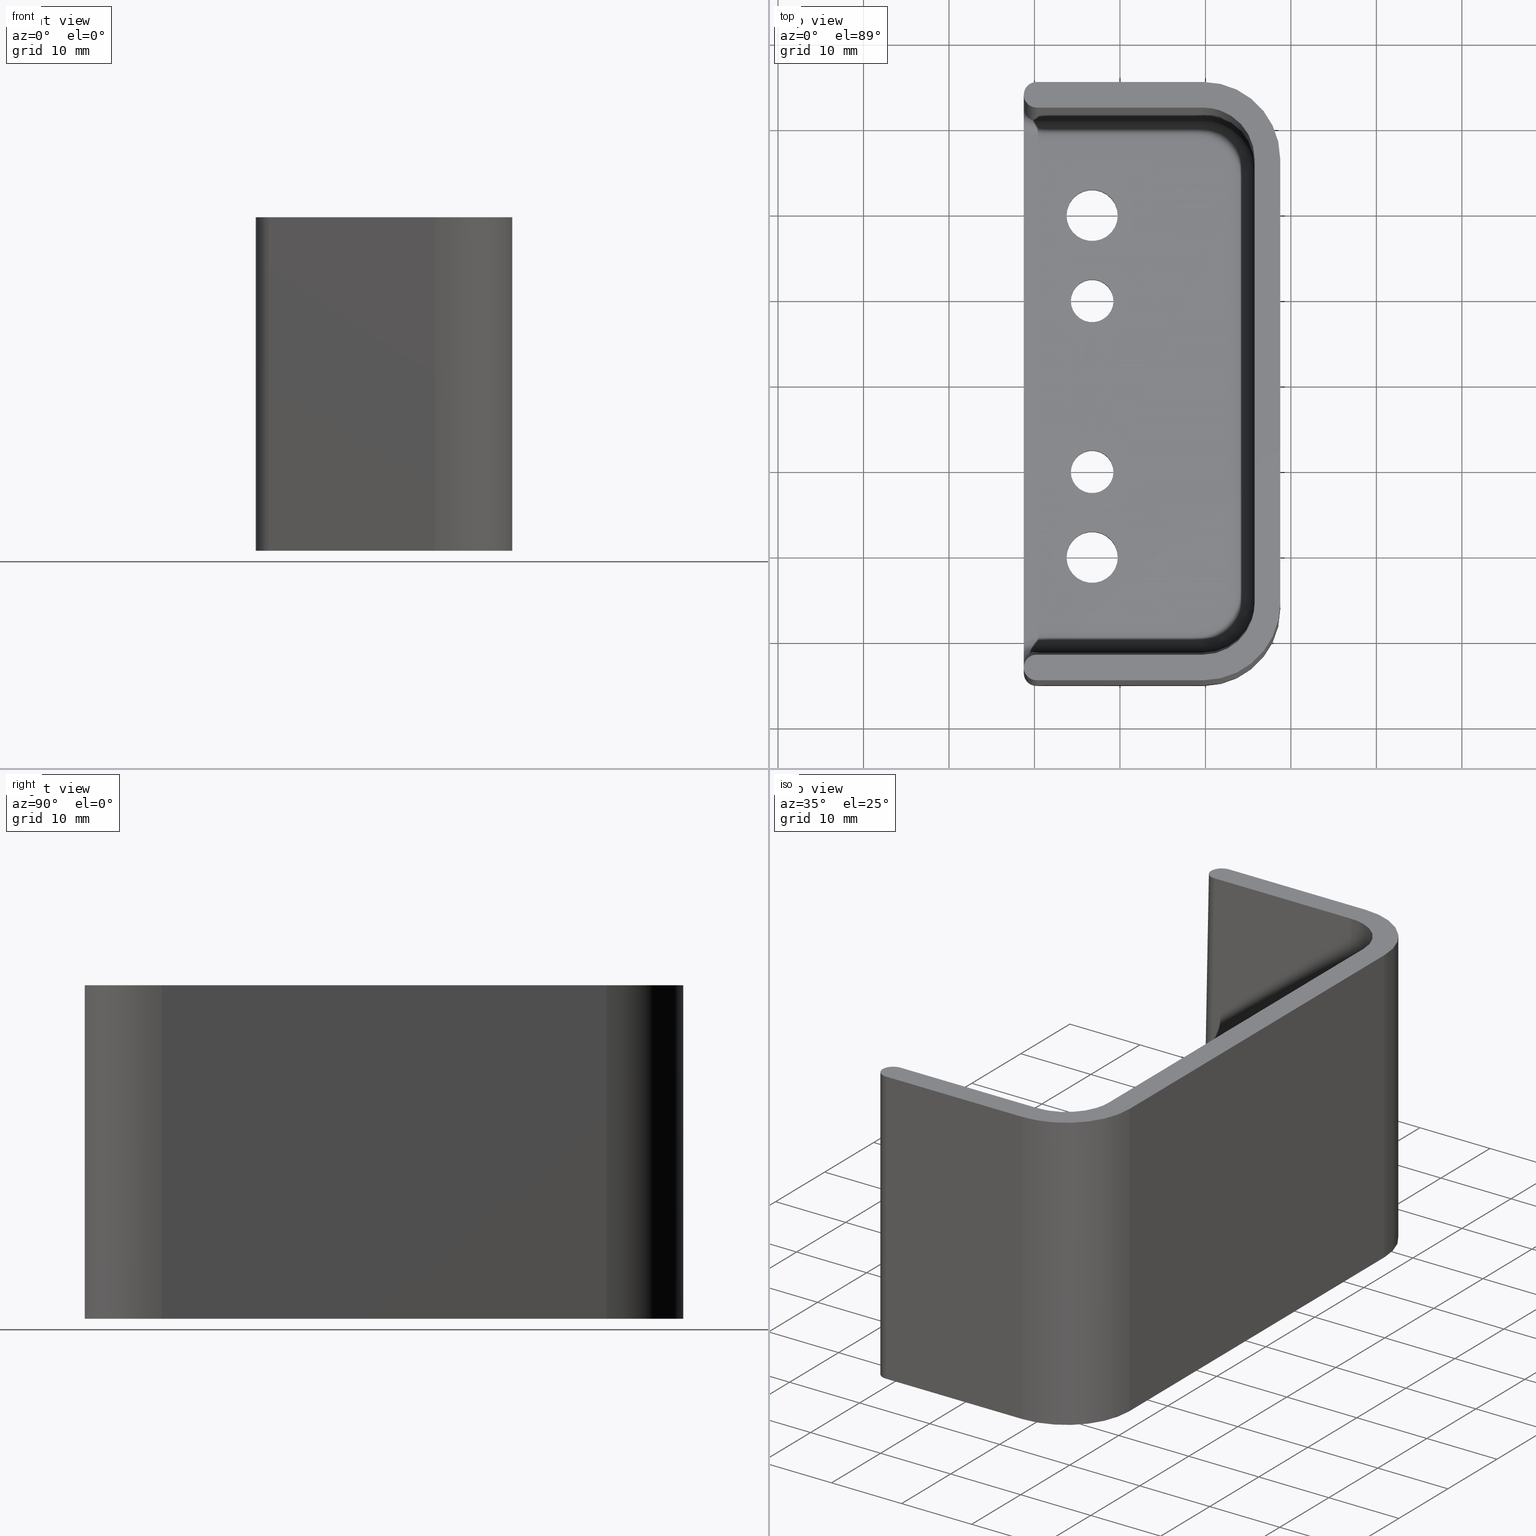
[diagram: canonical four-view strip — front | top / right | iso, engineering-drawing reading convention]
A machine part, canonical four-view strip (front | top / right | iso — engineering-drawing reading convention). The complete STEP part file that produces these views, byte-faithful:
ISO-10303-21;
HEADER;
/* Generated by software containing ST-Developer
 * from STEP Tools, Inc. (www.steptools.com) 
 */

FILE_DESCRIPTION(
/* description */ ('CUFFIA.PROT.STAFFA MICRO NYLON NERO'),
/* implementation_level */ '2;1');

FILE_NAME(
/* name */ 
'Q:\\Catalogo\\3_Profili e accessori MACAP\\Per Download Web e catalog
o artaceo\\ACCESSORI\\PAGINA 67\\CTPYY0000010-XF39101N.stp',
/* time_stamp */ '2018-02-28T15:41:36+01:00',
/* author */ ('fzagni'),
/* organization */ (''),
/* preprocessor_version */ 'ST-DEVELOPER v16.1',
/* originating_system */ 'Autodesk Inventor 2016',
/* authorisation */ '');

FILE_SCHEMA (('AUTOMOTIVE_DESIGN { 1 0 10303 214 3 1 1 }'));
ENDSEC;

DATA;
#10=MECHANICAL_DESIGN_GEOMETRIC_PRESENTATION_REPRESENTATION('',(#13),#1006);
#11=SHAPE_REPRESENTATION_RELATIONSHIP('SRR','None',#1015,#12);
#12=ADVANCED_BREP_SHAPE_REPRESENTATION('',(#14),#1005);
#13=STYLED_ITEM('',(#1024),#14);
#14=MANIFOLD_SOLID_BREP('Solido2',#510);
#15=PLANE('',#545);
#16=PLANE('',#548);
#17=PLANE('',#551);
#18=PLANE('',#552);
#19=PLANE('',#557);
#20=PLANE('',#558);
#21=PLANE('',#561);
#22=PLANE('',#566);
#23=PLANE('',#568);
#24=PLANE('',#570);
#25=B_SPLINE_CURVE_WITH_KNOTS('',3,(#821,#822,#823,#824,#825,#826,#827,
#828,#829,#830),.UNSPECIFIED.,.F.,.F.,(4,2,2,2,4),(0.,0.0716164799611134,
0.154741747433092,0.270847550066659,0.2715584243751),.UNSPECIFIED.);
#26=B_SPLINE_CURVE_WITH_KNOTS('',3,(#913,#914,#915,#916,#917,#918,#919,
#920,#921,#922),.UNSPECIFIED.,.F.,.F.,(4,2,2,2,4),(-0.000773015021683237,
0.,0.126252229330284,0.216641764230667,0.294516765560075),.UNSPECIFIED.);
#27=LINE('',#787,#60);
#28=LINE('',#788,#61);
#29=LINE('',#837,#62);
#30=LINE('',#838,#63);
#31=LINE('',#925,#64);
#32=LINE('',#926,#65);
#33=LINE('',#928,#66);
#34=LINE('',#929,#67);
#35=LINE('',#934,#68);
#36=LINE('',#935,#69);
#37=LINE('',#937,#70);
#38=LINE('',#940,#71);
#39=LINE('',#943,#72);
#40=LINE('',#945,#73);
#41=LINE('',#948,#74);
#42=LINE('',#951,#75);
#43=LINE('',#953,#76);
#44=LINE('',#958,#77);
#45=LINE('',#962,#78);
#46=LINE('',#966,#79);
#47=LINE('',#968,#80);
#48=LINE('',#972,#81);
#49=LINE('',#974,#82);
#50=LINE('',#975,#83);
#51=LINE('',#978,#84);
#52=LINE('',#982,#85);
#53=LINE('',#986,#86);
#54=LINE('',#990,#87);
#55=LINE('',#993,#88);
#56=LINE('',#995,#89);
#57=LINE('',#997,#90);
#58=LINE('',#999,#91);
#59=LINE('',#1001,#92);
#60=VECTOR('',#609,19.5);
#61=VECTOR('',#610,19.5);
#62=VECTOR('',#619,33.0145310117381);
#63=VECTOR('',#620,33.0590499724358);
#64=VECTOR('',#637,19.5);
#65=VECTOR('',#638,19.5);
#66=VECTOR('',#641,50.0358817250325);
#67=VECTOR('',#642,50.0358817250325);
#68=VECTOR('',#647,33.0590499724358);
#69=VECTOR('',#648,33.0145310117381);
#70=VECTOR('',#651,59.8440462666962);
#71=VECTOR('',#654,33.0590499724358);
#72=VECTOR('',#657,33.0145114171681);
#73=VECTOR('',#660,19.5);
#74=VECTOR('',#663,33.014511417168);
#75=VECTOR('',#666,33.0590499724358);
#76=VECTOR('',#669,19.5);
#77=VECTOR('',#674,19.4999999999996);
#78=VECTOR('',#677,52.0000000000002);
#79=VECTOR('',#680,19.4999999999996);
#80=VECTOR('',#683,51.9947159957318);
#81=VECTOR('',#688,39.);
#82=VECTOR('',#689,67.0000000000002);
#83=VECTOR('',#690,39.);
#84=VECTOR('',#693,39.);
#85=VECTOR('',#698,19.4999999999996);
#86=VECTOR('',#701,52.0000000000002);
#87=VECTOR('',#704,19.4999999999996);
#88=VECTOR('',#709,39.);
#89=VECTOR('',#712,39.);
#90=VECTOR('',#715,39.);
#91=VECTOR('',#718,39.);
#92=VECTOR('',#721,39.);
#93=ELLIPSE('',#524,4.50198150160065,4.5);
#94=ELLIPSE('',#526,6.00148626931317,6.);
#95=ELLIPSE('',#530,1.50264026015757,1.5);
#96=ELLIPSE('',#531,3.0013210010671,3.);
#97=ELLIPSE('',#533,6.0026420021342,6.);
#98=ELLIPSE('',#534,6.00148626931317,6.);
#99=ELLIPSE('',#536,4.50198150160065,4.5);
#100=ELLIPSE('',#539,1.50264026015758,1.5);
#101=ELLIPSE('',#540,3.0013210010671,3.);
#102=ELLIPSE('',#544,6.0026420021342,6.);
#103=ELLIPSE('',#547,1.50066050053355,1.5);
#104=ELLIPSE('',#550,1.50066050053355,1.5);
#105=B_SPLINE_SURFACE_WITH_KNOTS('',3,3,((#745,#746,#747,#748,#749,#750),
(#751,#752,#753,#754,#755,#756),(#757,#758,#759,#760,#761,#762),(#763,#764,
#765,#766,#767,#768),(#769,#770,#771,#772,#773,#774)),.UNSPECIFIED.,.F.,
 .F.,.F.,(4,1,4),(4,1,1,4),(0.,0.571428571428571,1.),(-8.94271686436828E-16,
0.673198425769241,1.12199737628207,1.5707963267949),.UNSPECIFIED.);
#106=B_SPLINE_SURFACE_WITH_KNOTS('',3,3,((#789,#790,#791,#792,#793,#794),
(#795,#796,#797,#798,#799,#800),(#801,#802,#803,#804,#805,#806),(#807,#808,
#809,#810,#811,#812),(#813,#814,#815,#816,#817,#818)),.UNSPECIFIED.,.F.,
 .F.,.F.,(4,1,4),(4,1,1,4),(0.,0.571428571428571,1.),(1.74971148680925E-13,
0.673198425769417,1.12199737628225,1.57079632679507),.UNSPECIFIED.);
#107=B_SPLINE_SURFACE_WITH_KNOTS('',3,3,((#839,#840,#841,#842,#843,#844),
(#845,#846,#847,#848,#849,#850),(#851,#852,#853,#854,#855,#856),(#857,#858,
#859,#860,#861,#862),(#863,#864,#865,#866,#867,#868)),.UNSPECIFIED.,.F.,
 .F.,.F.,(4,1,4),(4,1,1,4),(0.,0.571428571428571,1.),(-1.5707963267949,
-0.897597901025655,-0.448798950512827,4.31753398465338E-16),
 .UNSPECIFIED.);
#108=B_SPLINE_SURFACE_WITH_KNOTS('',3,3,((#877,#878,#879,#880,#881,#882),
(#883,#884,#885,#886,#887,#888),(#889,#890,#891,#892,#893,#894),(#895,#896,
#897,#898,#899,#900),(#901,#902,#903,#904,#905,#906)),.UNSPECIFIED.,.F.,
 .F.,.F.,(4,1,4),(4,1,1,4),(0.,0.571428571428571,1.),(-1.5707963267949,
-1.12199737628207,-0.673198425769242,4.9960036108132E-16),.UNSPECIFIED.);
#109=FACE_BOUND('',#151,.T.);
#110=FACE_BOUND('',#153,.T.);
#111=FACE_BOUND('',#155,.T.);
#112=FACE_BOUND('',#157,.T.);
#113=FACE_BOUND('',#168,.T.);
#114=FACE_BOUND('',#169,.T.);
#115=FACE_BOUND('',#170,.T.);
#116=FACE_BOUND('',#171,.T.);
#117=FACE_BOUND('',#181,.T.);
#118=FACE_BOUND('',#182,.T.);
#119=FACE_BOUND('',#183,.T.);
#120=FACE_BOUND('',#184,.T.);
#121=FACE_OUTER_BOUND('',#150,.T.);
#122=FACE_OUTER_BOUND('',#152,.T.);
#123=FACE_OUTER_BOUND('',#154,.T.);
#124=FACE_OUTER_BOUND('',#156,.T.);
#125=FACE_OUTER_BOUND('',#158,.T.);
#126=FACE_OUTER_BOUND('',#159,.T.);
#127=FACE_OUTER_BOUND('',#160,.T.);
#128=FACE_OUTER_BOUND('',#161,.T.);
#129=FACE_OUTER_BOUND('',#162,.T.);
#130=FACE_OUTER_BOUND('',#163,.T.);
#131=FACE_OUTER_BOUND('',#164,.T.);
#132=FACE_OUTER_BOUND('',#165,.T.);
#133=FACE_OUTER_BOUND('',#166,.T.);
#134=FACE_OUTER_BOUND('',#167,.T.);
#135=FACE_OUTER_BOUND('',#172,.T.);
#136=FACE_OUTER_BOUND('',#173,.T.);
#137=FACE_OUTER_BOUND('',#174,.T.);
#138=FACE_OUTER_BOUND('',#175,.T.);
#139=FACE_OUTER_BOUND('',#176,.T.);
#140=FACE_OUTER_BOUND('',#177,.T.);
#141=FACE_OUTER_BOUND('',#178,.T.);
#142=FACE_OUTER_BOUND('',#179,.T.);
#143=FACE_OUTER_BOUND('',#180,.T.);
#144=FACE_OUTER_BOUND('',#185,.T.);
#145=FACE_OUTER_BOUND('',#186,.T.);
#146=FACE_OUTER_BOUND('',#187,.T.);
#147=FACE_OUTER_BOUND('',#188,.T.);
#148=FACE_OUTER_BOUND('',#189,.T.);
#149=FACE_OUTER_BOUND('',#190,.T.);
#150=EDGE_LOOP('',(#328));
#151=EDGE_LOOP('',(#329));
#152=EDGE_LOOP('',(#330));
#153=EDGE_LOOP('',(#331));
#154=EDGE_LOOP('',(#332));
#155=EDGE_LOOP('',(#333));
#156=EDGE_LOOP('',(#334));
#157=EDGE_LOOP('',(#335));
#158=EDGE_LOOP('',(#336,#337,#338,#339));
#159=EDGE_LOOP('',(#340,#341,#342,#343));
#160=EDGE_LOOP('',(#344,#345,#346,#347));
#161=EDGE_LOOP('',(#348,#349,#350,#351));
#162=EDGE_LOOP('',(#352,#353,#354,#355));
#163=EDGE_LOOP('',(#356,#357,#358,#359));
#164=EDGE_LOOP('',(#360,#361,#362,#363));
#165=EDGE_LOOP('',(#364,#365,#366,#367));
#166=EDGE_LOOP('',(#368,#369,#370,#371));
#167=EDGE_LOOP('',(#372,#373,#374,#375,#376,#377,#378,#379));
#168=EDGE_LOOP('',(#380));
#169=EDGE_LOOP('',(#381));
#170=EDGE_LOOP('',(#382));
#171=EDGE_LOOP('',(#383));
#172=EDGE_LOOP('',(#384,#385,#386,#387));
#173=EDGE_LOOP('',(#388,#389,#390,#391));
#174=EDGE_LOOP('',(#392,#393,#394,#395));
#175=EDGE_LOOP('',(#396,#397,#398,#399));
#176=EDGE_LOOP('',(#400,#401,#402,#403,#404,#405,#406,#407,#408,#409,#410,
#411,#412,#413));
#177=EDGE_LOOP('',(#414,#415,#416,#417));
#178=EDGE_LOOP('',(#418,#419,#420,#421,#422,#423,#424,#425));
#179=EDGE_LOOP('',(#426,#427,#428,#429));
#180=EDGE_LOOP('',(#430,#431,#432,#433,#434,#435,#436,#437));
#181=EDGE_LOOP('',(#438));
#182=EDGE_LOOP('',(#439));
#183=EDGE_LOOP('',(#440));
#184=EDGE_LOOP('',(#441));
#185=EDGE_LOOP('',(#442,#443,#444,#445));
#186=EDGE_LOOP('',(#446,#447,#448,#449));
#187=EDGE_LOOP('',(#450,#451,#452,#453));
#188=EDGE_LOOP('',(#454,#455,#456,#457));
#189=EDGE_LOOP('',(#458,#459,#460,#461));
#190=EDGE_LOOP('',(#462,#463,#464,#465));
#191=CIRCLE('',#513,2.5);
#192=CIRCLE('',#514,2.5);
#193=CIRCLE('',#516,2.5);
#194=CIRCLE('',#517,2.5);
#195=CIRCLE('',#519,3.);
#196=CIRCLE('',#520,3.);
#197=CIRCLE('',#522,3.);
#198=CIRCLE('',#523,3.);
#199=CIRCLE('',#525,1.5);
#200=CIRCLE('',#527,1.5);
#201=CIRCLE('',#529,1.5);
#202=CIRCLE('',#535,1.5);
#203=CIRCLE('',#537,1.5);
#204=CIRCLE('',#538,1.5);
#205=CIRCLE('',#553,1.5);
#206=CIRCLE('',#554,9.);
#207=CIRCLE('',#555,9.);
#208=CIRCLE('',#556,1.5);
#209=CIRCLE('',#560,1.5);
#210=CIRCLE('',#562,9.);
#211=CIRCLE('',#563,9.);
#212=CIRCLE('',#564,1.5);
#213=VERTEX_POINT('',#726);
#214=VERTEX_POINT('',#728);
#215=VERTEX_POINT('',#731);
#216=VERTEX_POINT('',#733);
#217=VERTEX_POINT('',#736);
#218=VERTEX_POINT('',#738);
#219=VERTEX_POINT('',#741);
#220=VERTEX_POINT('',#743);
#221=VERTEX_POINT('',#775);
#222=VERTEX_POINT('',#776);
#223=VERTEX_POINT('',#778);
#224=VERTEX_POINT('',#780);
#225=VERTEX_POINT('',#784);
#226=VERTEX_POINT('',#785);
#227=VERTEX_POINT('',#819);
#228=VERTEX_POINT('',#820);
#229=VERTEX_POINT('',#834);
#230=VERTEX_POINT('',#835);
#231=VERTEX_POINT('',#869);
#232=VERTEX_POINT('',#870);
#233=VERTEX_POINT('',#872);
#234=VERTEX_POINT('',#874);
#235=VERTEX_POINT('',#907);
#236=VERTEX_POINT('',#908);
#237=VERTEX_POINT('',#910);
#238=VERTEX_POINT('',#912);
#239=VERTEX_POINT('',#931);
#240=VERTEX_POINT('',#932);
#241=VERTEX_POINT('',#939);
#242=VERTEX_POINT('',#941);
#243=VERTEX_POINT('',#947);
#244=VERTEX_POINT('',#949);
#245=VERTEX_POINT('',#955);
#246=VERTEX_POINT('',#957);
#247=VERTEX_POINT('',#959);
#248=VERTEX_POINT('',#961);
#249=VERTEX_POINT('',#963);
#250=VERTEX_POINT('',#965);
#251=VERTEX_POINT('',#971);
#252=VERTEX_POINT('',#973);
#253=VERTEX_POINT('',#977);
#254=VERTEX_POINT('',#981);
#255=VERTEX_POINT('',#983);
#256=VERTEX_POINT('',#985);
#257=VERTEX_POINT('',#987);
#258=VERTEX_POINT('',#989);
#259=EDGE_CURVE('',#213,#213,#191,.T.);
#260=EDGE_CURVE('',#214,#214,#192,.T.);
#261=EDGE_CURVE('',#215,#215,#193,.T.);
#262=EDGE_CURVE('',#216,#216,#194,.T.);
#263=EDGE_CURVE('',#217,#217,#195,.T.);
#264=EDGE_CURVE('',#218,#218,#196,.T.);
#265=EDGE_CURVE('',#219,#219,#197,.T.);
#266=EDGE_CURVE('',#220,#220,#198,.T.);
#267=EDGE_CURVE('',#221,#222,#93,.T.);
#268=EDGE_CURVE('',#223,#222,#199,.T.);
#269=EDGE_CURVE('',#224,#223,#94,.F.);
#270=EDGE_CURVE('',#221,#224,#200,.T.);
#271=EDGE_CURVE('',#225,#226,#201,.T.);
#272=EDGE_CURVE('',#226,#223,#27,.T.);
#273=EDGE_CURVE('',#222,#225,#28,.T.);
#274=EDGE_CURVE('',#227,#228,#25,.T.);
#275=EDGE_CURVE('',#228,#226,#95,.T.);
#276=EDGE_CURVE('',#225,#227,#96,.T.);
#277=EDGE_CURVE('',#229,#230,#97,.T.);
#278=EDGE_CURVE('',#230,#224,#29,.T.);
#279=EDGE_CURVE('',#223,#229,#30,.T.);
#280=EDGE_CURVE('',#231,#232,#98,.F.);
#281=EDGE_CURVE('',#233,#231,#202,.T.);
#282=EDGE_CURVE('',#233,#234,#99,.T.);
#283=EDGE_CURVE('',#232,#234,#203,.T.);
#284=EDGE_CURVE('',#235,#236,#204,.T.);
#285=EDGE_CURVE('',#236,#237,#100,.T.);
#286=EDGE_CURVE('',#237,#238,#26,.T.);
#287=EDGE_CURVE('',#238,#235,#101,.T.);
#288=EDGE_CURVE('',#231,#236,#31,.T.);
#289=EDGE_CURVE('',#235,#233,#32,.T.);
#290=EDGE_CURVE('',#234,#221,#33,.T.);
#291=EDGE_CURVE('',#224,#232,#34,.T.);
#292=EDGE_CURVE('',#239,#240,#102,.T.);
#293=EDGE_CURVE('',#240,#231,#35,.T.);
#294=EDGE_CURVE('',#232,#239,#36,.T.);
#295=EDGE_CURVE('',#238,#227,#37,.T.);
#296=EDGE_CURVE('',#236,#241,#38,.T.);
#297=EDGE_CURVE('',#241,#242,#103,.T.);
#298=EDGE_CURVE('',#242,#237,#39,.T.);
#299=EDGE_CURVE('',#241,#240,#40,.T.);
#300=EDGE_CURVE('',#228,#243,#41,.T.);
#301=EDGE_CURVE('',#243,#244,#104,.T.);
#302=EDGE_CURVE('',#244,#226,#42,.T.);
#303=EDGE_CURVE('',#229,#244,#43,.T.);
#304=EDGE_CURVE('',#243,#245,#205,.T.);
#305=EDGE_CURVE('',#245,#246,#44,.T.);
#306=EDGE_CURVE('',#246,#247,#206,.T.);
#307=EDGE_CURVE('',#247,#248,#45,.T.);
#308=EDGE_CURVE('',#248,#249,#207,.T.);
#309=EDGE_CURVE('',#249,#250,#46,.T.);
#310=EDGE_CURVE('',#250,#242,#208,.T.);
#311=EDGE_CURVE('',#239,#230,#47,.T.);
#312=EDGE_CURVE('',#251,#242,#48,.T.);
#313=EDGE_CURVE('',#252,#251,#49,.T.);
#314=EDGE_CURVE('',#252,#243,#50,.T.);
#315=EDGE_CURVE('',#253,#250,#51,.T.);
#316=EDGE_CURVE('',#251,#253,#209,.T.);
#317=EDGE_CURVE('',#253,#254,#52,.T.);
#318=EDGE_CURVE('',#254,#255,#210,.T.);
#319=EDGE_CURVE('',#255,#256,#53,.T.);
#320=EDGE_CURVE('',#256,#257,#211,.T.);
#321=EDGE_CURVE('',#257,#258,#54,.T.);
#322=EDGE_CURVE('',#258,#252,#212,.T.);
#323=EDGE_CURVE('',#245,#258,#55,.T.);
#324=EDGE_CURVE('',#254,#249,#56,.T.);
#325=EDGE_CURVE('',#255,#248,#57,.T.);
#326=EDGE_CURVE('',#256,#247,#58,.T.);
#327=EDGE_CURVE('',#257,#246,#59,.T.);
#328=ORIENTED_EDGE('',*,*,#259,.F.);
#329=ORIENTED_EDGE('',*,*,#260,.F.);
#330=ORIENTED_EDGE('',*,*,#261,.F.);
#331=ORIENTED_EDGE('',*,*,#262,.F.);
#332=ORIENTED_EDGE('',*,*,#263,.F.);
#333=ORIENTED_EDGE('',*,*,#264,.F.);
#334=ORIENTED_EDGE('',*,*,#265,.F.);
#335=ORIENTED_EDGE('',*,*,#266,.F.);
#336=ORIENTED_EDGE('',*,*,#267,.T.);
#337=ORIENTED_EDGE('',*,*,#268,.F.);
#338=ORIENTED_EDGE('',*,*,#269,.F.);
#339=ORIENTED_EDGE('',*,*,#270,.F.);
#340=ORIENTED_EDGE('',*,*,#271,.T.);
#341=ORIENTED_EDGE('',*,*,#272,.T.);
#342=ORIENTED_EDGE('',*,*,#268,.T.);
#343=ORIENTED_EDGE('',*,*,#273,.T.);
#344=ORIENTED_EDGE('',*,*,#274,.T.);
#345=ORIENTED_EDGE('',*,*,#275,.T.);
#346=ORIENTED_EDGE('',*,*,#271,.F.);
#347=ORIENTED_EDGE('',*,*,#276,.T.);
#348=ORIENTED_EDGE('',*,*,#277,.T.);
#349=ORIENTED_EDGE('',*,*,#278,.T.);
#350=ORIENTED_EDGE('',*,*,#269,.T.);
#351=ORIENTED_EDGE('',*,*,#279,.T.);
#352=ORIENTED_EDGE('',*,*,#280,.F.);
#353=ORIENTED_EDGE('',*,*,#281,.F.);
#354=ORIENTED_EDGE('',*,*,#282,.T.);
#355=ORIENTED_EDGE('',*,*,#283,.F.);
#356=ORIENTED_EDGE('',*,*,#284,.T.);
#357=ORIENTED_EDGE('',*,*,#285,.T.);
#358=ORIENTED_EDGE('',*,*,#286,.T.);
#359=ORIENTED_EDGE('',*,*,#287,.T.);
#360=ORIENTED_EDGE('',*,*,#281,.T.);
#361=ORIENTED_EDGE('',*,*,#288,.T.);
#362=ORIENTED_EDGE('',*,*,#284,.F.);
#363=ORIENTED_EDGE('',*,*,#289,.T.);
#364=ORIENTED_EDGE('',*,*,#283,.T.);
#365=ORIENTED_EDGE('',*,*,#290,.T.);
#366=ORIENTED_EDGE('',*,*,#270,.T.);
#367=ORIENTED_EDGE('',*,*,#291,.T.);
#368=ORIENTED_EDGE('',*,*,#292,.T.);
#369=ORIENTED_EDGE('',*,*,#293,.T.);
#370=ORIENTED_EDGE('',*,*,#280,.T.);
#371=ORIENTED_EDGE('',*,*,#294,.T.);
#372=ORIENTED_EDGE('',*,*,#276,.F.);
#373=ORIENTED_EDGE('',*,*,#273,.F.);
#374=ORIENTED_EDGE('',*,*,#267,.F.);
#375=ORIENTED_EDGE('',*,*,#290,.F.);
#376=ORIENTED_EDGE('',*,*,#282,.F.);
#377=ORIENTED_EDGE('',*,*,#289,.F.);
#378=ORIENTED_EDGE('',*,*,#287,.F.);
#379=ORIENTED_EDGE('',*,*,#295,.T.);
#380=ORIENTED_EDGE('',*,*,#260,.T.);
#381=ORIENTED_EDGE('',*,*,#262,.T.);
#382=ORIENTED_EDGE('',*,*,#264,.T.);
#383=ORIENTED_EDGE('',*,*,#266,.T.);
#384=ORIENTED_EDGE('',*,*,#285,.F.);
#385=ORIENTED_EDGE('',*,*,#296,.T.);
#386=ORIENTED_EDGE('',*,*,#297,.T.);
#387=ORIENTED_EDGE('',*,*,#298,.T.);
#388=ORIENTED_EDGE('',*,*,#288,.F.);
#389=ORIENTED_EDGE('',*,*,#293,.F.);
#390=ORIENTED_EDGE('',*,*,#299,.F.);
#391=ORIENTED_EDGE('',*,*,#296,.F.);
#392=ORIENTED_EDGE('',*,*,#275,.F.);
#393=ORIENTED_EDGE('',*,*,#300,.T.);
#394=ORIENTED_EDGE('',*,*,#301,.T.);
#395=ORIENTED_EDGE('',*,*,#302,.T.);
#396=ORIENTED_EDGE('',*,*,#272,.F.);
#397=ORIENTED_EDGE('',*,*,#302,.F.);
#398=ORIENTED_EDGE('',*,*,#303,.F.);
#399=ORIENTED_EDGE('',*,*,#279,.F.);
#400=ORIENTED_EDGE('',*,*,#301,.F.);
#401=ORIENTED_EDGE('',*,*,#304,.T.);
#402=ORIENTED_EDGE('',*,*,#305,.T.);
#403=ORIENTED_EDGE('',*,*,#306,.T.);
#404=ORIENTED_EDGE('',*,*,#307,.T.);
#405=ORIENTED_EDGE('',*,*,#308,.T.);
#406=ORIENTED_EDGE('',*,*,#309,.T.);
#407=ORIENTED_EDGE('',*,*,#310,.T.);
#408=ORIENTED_EDGE('',*,*,#297,.F.);
#409=ORIENTED_EDGE('',*,*,#299,.T.);
#410=ORIENTED_EDGE('',*,*,#292,.F.);
#411=ORIENTED_EDGE('',*,*,#311,.T.);
#412=ORIENTED_EDGE('',*,*,#277,.F.);
#413=ORIENTED_EDGE('',*,*,#303,.T.);
#414=ORIENTED_EDGE('',*,*,#278,.F.);
#415=ORIENTED_EDGE('',*,*,#311,.F.);
#416=ORIENTED_EDGE('',*,*,#294,.F.);
#417=ORIENTED_EDGE('',*,*,#291,.F.);
#418=ORIENTED_EDGE('',*,*,#286,.F.);
#419=ORIENTED_EDGE('',*,*,#298,.F.);
#420=ORIENTED_EDGE('',*,*,#312,.F.);
#421=ORIENTED_EDGE('',*,*,#313,.F.);
#422=ORIENTED_EDGE('',*,*,#314,.T.);
#423=ORIENTED_EDGE('',*,*,#300,.F.);
#424=ORIENTED_EDGE('',*,*,#274,.F.);
#425=ORIENTED_EDGE('',*,*,#295,.F.);
#426=ORIENTED_EDGE('',*,*,#312,.T.);
#427=ORIENTED_EDGE('',*,*,#310,.F.);
#428=ORIENTED_EDGE('',*,*,#315,.F.);
#429=ORIENTED_EDGE('',*,*,#316,.F.);
#430=ORIENTED_EDGE('',*,*,#313,.T.);
#431=ORIENTED_EDGE('',*,*,#316,.T.);
#432=ORIENTED_EDGE('',*,*,#317,.T.);
#433=ORIENTED_EDGE('',*,*,#318,.T.);
#434=ORIENTED_EDGE('',*,*,#319,.T.);
#435=ORIENTED_EDGE('',*,*,#320,.T.);
#436=ORIENTED_EDGE('',*,*,#321,.T.);
#437=ORIENTED_EDGE('',*,*,#322,.T.);
#438=ORIENTED_EDGE('',*,*,#259,.T.);
#439=ORIENTED_EDGE('',*,*,#261,.T.);
#440=ORIENTED_EDGE('',*,*,#263,.T.);
#441=ORIENTED_EDGE('',*,*,#265,.T.);
#442=ORIENTED_EDGE('',*,*,#314,.F.);
#443=ORIENTED_EDGE('',*,*,#322,.F.);
#444=ORIENTED_EDGE('',*,*,#323,.F.);
#445=ORIENTED_EDGE('',*,*,#304,.F.);
#446=ORIENTED_EDGE('',*,*,#315,.T.);
#447=ORIENTED_EDGE('',*,*,#309,.F.);
#448=ORIENTED_EDGE('',*,*,#324,.F.);
#449=ORIENTED_EDGE('',*,*,#317,.F.);
#450=ORIENTED_EDGE('',*,*,#324,.T.);
#451=ORIENTED_EDGE('',*,*,#308,.F.);
#452=ORIENTED_EDGE('',*,*,#325,.F.);
#453=ORIENTED_EDGE('',*,*,#318,.F.);
#454=ORIENTED_EDGE('',*,*,#325,.T.);
#455=ORIENTED_EDGE('',*,*,#307,.F.);
#456=ORIENTED_EDGE('',*,*,#326,.F.);
#457=ORIENTED_EDGE('',*,*,#319,.F.);
#458=ORIENTED_EDGE('',*,*,#326,.T.);
#459=ORIENTED_EDGE('',*,*,#306,.F.);
#460=ORIENTED_EDGE('',*,*,#327,.F.);
#461=ORIENTED_EDGE('',*,*,#320,.F.);
#462=ORIENTED_EDGE('',*,*,#327,.T.);
#463=ORIENTED_EDGE('',*,*,#305,.F.);
#464=ORIENTED_EDGE('',*,*,#323,.T.);
#465=ORIENTED_EDGE('',*,*,#321,.F.);
#466=CYLINDRICAL_SURFACE('',#512,2.5);
#467=CYLINDRICAL_SURFACE('',#515,2.5);
#468=CYLINDRICAL_SURFACE('',#518,3.);
#469=CYLINDRICAL_SURFACE('',#521,3.);
#470=CYLINDRICAL_SURFACE('',#528,1.5);
#471=CYLINDRICAL_SURFACE('',#532,6.);
#472=CYLINDRICAL_SURFACE('',#541,1.5);
#473=CYLINDRICAL_SURFACE('',#542,1.5);
#474=CYLINDRICAL_SURFACE('',#543,6.);
#475=CYLINDRICAL_SURFACE('',#546,1.5);
#476=CYLINDRICAL_SURFACE('',#549,1.5);
#477=CYLINDRICAL_SURFACE('',#559,1.5);
#478=CYLINDRICAL_SURFACE('',#565,1.5);
#479=CYLINDRICAL_SURFACE('',#567,9.);
#480=CYLINDRICAL_SURFACE('',#569,9.);
#481=ADVANCED_FACE('',(#121,#109),#466,.F.);
#482=ADVANCED_FACE('',(#122,#110),#467,.F.);
#483=ADVANCED_FACE('',(#123,#111),#468,.F.);
#484=ADVANCED_FACE('',(#124,#112),#469,.F.);
#485=ADVANCED_FACE('',(#125),#105,.T.);
#486=ADVANCED_FACE('',(#126),#470,.F.);
#487=ADVANCED_FACE('',(#127),#106,.T.);
#488=ADVANCED_FACE('',(#128),#471,.F.);
#489=ADVANCED_FACE('',(#129),#107,.T.);
#490=ADVANCED_FACE('',(#130),#108,.T.);
#491=ADVANCED_FACE('',(#131),#472,.F.);
#492=ADVANCED_FACE('',(#132),#473,.F.);
#493=ADVANCED_FACE('',(#133),#474,.F.);
#494=ADVANCED_FACE('',(#134,#113,#114,#115,#116),#15,.F.);
#495=ADVANCED_FACE('',(#135),#475,.T.);
#496=ADVANCED_FACE('',(#136),#16,.F.);
#497=ADVANCED_FACE('',(#137),#476,.T.);
#498=ADVANCED_FACE('',(#138),#17,.F.);
#499=ADVANCED_FACE('',(#139),#18,.T.);
#500=ADVANCED_FACE('',(#140),#19,.F.);
#501=ADVANCED_FACE('',(#141),#20,.T.);
#502=ADVANCED_FACE('',(#142),#477,.T.);
#503=ADVANCED_FACE('',(#143,#117,#118,#119,#120),#21,.F.);
#504=ADVANCED_FACE('',(#144),#478,.T.);
#505=ADVANCED_FACE('',(#145),#22,.T.);
#506=ADVANCED_FACE('',(#146),#479,.T.);
#507=ADVANCED_FACE('',(#147),#23,.T.);
#508=ADVANCED_FACE('',(#148),#480,.T.);
#509=ADVANCED_FACE('',(#149),#24,.T.);
#510=CLOSED_SHELL('',(#481,#482,#483,#484,#485,#486,#487,#488,#489,#490,
#491,#492,#493,#494,#495,#496,#497,#498,#499,#500,#501,#502,#503,#504,#505,
#506,#507,#508,#509));
#511=AXIS2_PLACEMENT_3D('placement',#724,#571,#572);
#512=AXIS2_PLACEMENT_3D('',#725,#573,#574);
#513=AXIS2_PLACEMENT_3D('',#727,#575,#576);
#514=AXIS2_PLACEMENT_3D('',#729,#577,#578);
#515=AXIS2_PLACEMENT_3D('',#730,#579,#580);
#516=AXIS2_PLACEMENT_3D('',#732,#581,#582);
#517=AXIS2_PLACEMENT_3D('',#734,#583,#584);
#518=AXIS2_PLACEMENT_3D('',#735,#585,#586);
#519=AXIS2_PLACEMENT_3D('',#737,#587,#588);
#520=AXIS2_PLACEMENT_3D('',#739,#589,#590);
#521=AXIS2_PLACEMENT_3D('',#740,#591,#592);
#522=AXIS2_PLACEMENT_3D('',#742,#593,#594);
#523=AXIS2_PLACEMENT_3D('',#744,#595,#596);
#524=AXIS2_PLACEMENT_3D('',#777,#597,#598);
#525=AXIS2_PLACEMENT_3D('',#779,#599,#600);
#526=AXIS2_PLACEMENT_3D('',#781,#601,#602);
#527=AXIS2_PLACEMENT_3D('',#782,#603,#604);
#528=AXIS2_PLACEMENT_3D('',#783,#605,#606);
#529=AXIS2_PLACEMENT_3D('',#786,#607,#608);
#530=AXIS2_PLACEMENT_3D('',#831,#611,#612);
#531=AXIS2_PLACEMENT_3D('',#832,#613,#614);
#532=AXIS2_PLACEMENT_3D('',#833,#615,#616);
#533=AXIS2_PLACEMENT_3D('',#836,#617,#618);
#534=AXIS2_PLACEMENT_3D('',#871,#621,#622);
#535=AXIS2_PLACEMENT_3D('',#873,#623,#624);
#536=AXIS2_PLACEMENT_3D('',#875,#625,#626);
#537=AXIS2_PLACEMENT_3D('',#876,#627,#628);
#538=AXIS2_PLACEMENT_3D('',#909,#629,#630);
#539=AXIS2_PLACEMENT_3D('',#911,#631,#632);
#540=AXIS2_PLACEMENT_3D('',#923,#633,#634);
#541=AXIS2_PLACEMENT_3D('',#924,#635,#636);
#542=AXIS2_PLACEMENT_3D('',#927,#639,#640);
#543=AXIS2_PLACEMENT_3D('',#930,#643,#644);
#544=AXIS2_PLACEMENT_3D('',#933,#645,#646);
#545=AXIS2_PLACEMENT_3D('',#936,#649,#650);
#546=AXIS2_PLACEMENT_3D('',#938,#652,#653);
#547=AXIS2_PLACEMENT_3D('',#942,#655,#656);
#548=AXIS2_PLACEMENT_3D('',#944,#658,#659);
#549=AXIS2_PLACEMENT_3D('',#946,#661,#662);
#550=AXIS2_PLACEMENT_3D('',#950,#664,#665);
#551=AXIS2_PLACEMENT_3D('',#952,#667,#668);
#552=AXIS2_PLACEMENT_3D('',#954,#670,#671);
#553=AXIS2_PLACEMENT_3D('',#956,#672,#673);
#554=AXIS2_PLACEMENT_3D('',#960,#675,#676);
#555=AXIS2_PLACEMENT_3D('',#964,#678,#679);
#556=AXIS2_PLACEMENT_3D('',#967,#681,#682);
#557=AXIS2_PLACEMENT_3D('',#969,#684,#685);
#558=AXIS2_PLACEMENT_3D('',#970,#686,#687);
#559=AXIS2_PLACEMENT_3D('',#976,#691,#692);
#560=AXIS2_PLACEMENT_3D('',#979,#694,#695);
#561=AXIS2_PLACEMENT_3D('',#980,#696,#697);
#562=AXIS2_PLACEMENT_3D('',#984,#699,#700);
#563=AXIS2_PLACEMENT_3D('',#988,#702,#703);
#564=AXIS2_PLACEMENT_3D('',#991,#705,#706);
#565=AXIS2_PLACEMENT_3D('',#992,#707,#708);
#566=AXIS2_PLACEMENT_3D('',#994,#710,#711);
#567=AXIS2_PLACEMENT_3D('',#996,#713,#714);
#568=AXIS2_PLACEMENT_3D('',#998,#716,#717);
#569=AXIS2_PLACEMENT_3D('',#1000,#719,#720);
#570=AXIS2_PLACEMENT_3D('',#1002,#722,#723);
#571=DIRECTION('axis',(0.,0.,1.));
#572=DIRECTION('refdir',(1.,0.,0.));
#573=DIRECTION('center_axis',(0.,3.80647894157195E-16,1.));
#574=DIRECTION('ref_axis',(1.,0.,0.));
#575=DIRECTION('center_axis',(0.,0.,1.));
#576=DIRECTION('ref_axis',(1.,0.,0.));
#577=DIRECTION('center_axis',(0.,-3.80647894157195E-16,-1.));
#578=DIRECTION('ref_axis',(1.,0.,0.));
#579=DIRECTION('center_axis',(0.,3.80647894157195E-16,1.));
#580=DIRECTION('ref_axis',(1.,0.,0.));
#581=DIRECTION('center_axis',(0.,0.,1.));
#582=DIRECTION('ref_axis',(1.,0.,0.));
#583=DIRECTION('center_axis',(0.,-3.80647894157195E-16,-1.));
#584=DIRECTION('ref_axis',(1.,0.,0.));
#585=DIRECTION('center_axis',(0.,3.80647894157195E-16,1.));
#586=DIRECTION('ref_axis',(1.,0.,0.));
#587=DIRECTION('center_axis',(0.,0.,1.));
#588=DIRECTION('ref_axis',(1.,0.,0.));
#589=DIRECTION('center_axis',(0.,-3.80647894157195E-16,-1.));
#590=DIRECTION('ref_axis',(1.,0.,0.));
#591=DIRECTION('center_axis',(0.,3.80647894157195E-16,1.));
#592=DIRECTION('ref_axis',(1.,0.,0.));
#593=DIRECTION('center_axis',(0.,0.,1.));
#594=DIRECTION('ref_axis',(1.,0.,0.));
#595=DIRECTION('center_axis',(0.,-3.80647894157195E-16,-1.));
#596=DIRECTION('ref_axis',(1.,0.,0.));
#597=DIRECTION('center_axis',(0.,-3.80647894157195E-16,-1.));
#598=DIRECTION('ref_axis',(6.78171004619558E-16,-1.,3.80647894157195E-16));
#599=DIRECTION('center_axis',(1.,0.,0.));
#600=DIRECTION('ref_axis',(0.,-0.999559860119384,-0.0296662440851107));
#601=DIRECTION('center_axis',(5.48799843229597E-18,-0.0074147243084094,
0.99997251055388));
#602=DIRECTION('ref_axis',(7.39965385109322E-16,-0.99997251055388,-0.0074147243084094));
#603=DIRECTION('center_axis',(0.,-1.,0.));
#604=DIRECTION('ref_axis',(0.,0.,-1.));
#605=DIRECTION('center_axis',(1.,0.,0.));
#606=DIRECTION('ref_axis',(0.,-0.696539214945896,-0.717518725917697));
#607=DIRECTION('center_axis',(-1.,0.,0.));
#608=DIRECTION('ref_axis',(0.,0.,-1.));
#609=DIRECTION('',(1.,0.,0.));
#610=DIRECTION('',(-1.,0.,0.));
#611=DIRECTION('center_axis',(-2.1258770863305E-15,-0.0296141181010282,
-0.999561405822123));
#612=DIRECTION('ref_axis',(1.75107019166763E-13,0.999561405822123,-0.0296141181010282));
#613=DIRECTION('center_axis',(0.,3.80647894157195E-16,1.));
#614=DIRECTION('ref_axis',(1.74968119191846E-13,1.,-3.80647894157195E-16));
#615=DIRECTION('center_axis',(0.,0.0296662440851107,-0.999559860119384));
#616=DIRECTION('ref_axis',(0.707106781186548,-0.706795555292293,-0.0209772023649171));
#617=DIRECTION('center_axis',(0.,0.,1.));
#618=DIRECTION('ref_axis',(-1.74505729870514E-13,-1.,0.));
#619=DIRECTION('',(0.,0.0296662440851107,-0.999559860119384));
#620=DIRECTION('',(0.,-0.0296662440851107,0.999559860119384));
#621=DIRECTION('center_axis',(5.48799843229679E-18,0.00741472430841051,
0.99997251055388));
#622=DIRECTION('ref_axis',(7.39965385109322E-16,0.99997251055388,-0.00741472430841051));
#623=DIRECTION('center_axis',(1.,0.,0.));
#624=DIRECTION('ref_axis',(0.,0.,-1.));
#625=DIRECTION('center_axis',(0.,-3.80647894157195E-16,-1.));
#626=DIRECTION('ref_axis',(6.78171004619558E-16,1.,-3.80647894157195E-16));
#627=DIRECTION('center_axis',(0.,1.,0.));
#628=DIRECTION('ref_axis',(1.,0.,0.));
#629=DIRECTION('center_axis',(1.,0.,0.));
#630=DIRECTION('ref_axis',(0.,0.,-1.));
#631=DIRECTION('center_axis',(8.7675402052609E-17,0.0296141181010266,-0.999561405822123));
#632=DIRECTION('ref_axis',(0.,-0.999561405822123,-0.0296141181010266));
#633=DIRECTION('center_axis',(0.,3.80647894157195E-16,1.));
#634=DIRECTION('ref_axis',(-1.84955728532607E-16,-1.,3.80647894157195E-16));
#635=DIRECTION('center_axis',(1.,0.,0.));
#636=DIRECTION('ref_axis',(0.,0.696539214945896,-0.717518725917697));
#637=DIRECTION('',(-1.,0.,0.));
#638=DIRECTION('',(1.,0.,0.));
#639=DIRECTION('center_axis',(0.,1.,-3.80647894157195E-16));
#640=DIRECTION('ref_axis',(0.707106781186546,0.,-0.707106781186549));
#641=DIRECTION('',(0.,-1.,3.80647894157195E-16));
#642=DIRECTION('',(0.,1.,-3.80647894157195E-16));
#643=DIRECTION('center_axis',(0.,0.0296662440851107,0.999559860119384));
#644=DIRECTION('ref_axis',(0.707106781186548,0.706795555292293,-0.0209772023649171));
#645=DIRECTION('center_axis',(0.,0.,1.));
#646=DIRECTION('ref_axis',(6.47345049864124E-16,1.,0.));
#647=DIRECTION('',(0.,-0.0296662440851107,-0.999559860119384));
#648=DIRECTION('',(0.,0.0296662440851107,0.999559860119384));
#649=DIRECTION('center_axis',(0.,-3.80647894157195E-16,-1.));
#650=DIRECTION('ref_axis',(0.,1.,-3.5527136788005E-16));
#651=DIRECTION('',(0.,-1.,3.80647894157195E-16));
#652=DIRECTION('center_axis',(0.,0.0296662440851107,0.999559860119384));
#653=DIRECTION('ref_axis',(-0.707106781186548,-0.706795555292293,0.0209772023649171));
#654=DIRECTION('',(0.,0.0296662440851107,0.999559860119384));
#655=DIRECTION('center_axis',(0.,0.,-1.));
#656=DIRECTION('ref_axis',(-1.84955728532607E-16,-1.,0.));
#657=DIRECTION('',(0.,-0.0296662440851107,-0.999559860119384));
#658=DIRECTION('center_axis',(0.,0.999559860119384,-0.0296662440851107));
#659=DIRECTION('ref_axis',(0.,0.0296662440851108,0.999559860119384));
#660=DIRECTION('',(1.,0.,0.));
#661=DIRECTION('center_axis',(0.,0.0296662440851107,-0.999559860119384));
#662=DIRECTION('ref_axis',(-0.707106781186548,0.706795555292293,0.0209772023649171));
#663=DIRECTION('',(0.,-0.0296662440851107,0.999559860119384));
#664=DIRECTION('center_axis',(0.,0.,-1.));
#665=DIRECTION('ref_axis',(1.74968119191846E-13,1.,0.));
#666=DIRECTION('',(0.,0.0296662440851107,-0.999559860119384));
#667=DIRECTION('center_axis',(0.,-0.999559860119384,-0.0296662440851107));
#668=DIRECTION('ref_axis',(0.,0.0296662440851108,-0.999559860119384));
#669=DIRECTION('',(-1.,0.,0.));
#670=DIRECTION('center_axis',(0.,0.,1.));
#671=DIRECTION('ref_axis',(1.,0.,0.));
#672=DIRECTION('center_axis',(0.,0.,1.));
#673=DIRECTION('ref_axis',(0.,1.,0.));
#674=DIRECTION('',(1.,-2.2773805633337E-16,0.));
#675=DIRECTION('center_axis',(0.,0.,1.));
#676=DIRECTION('ref_axis',(-1.2335811384724E-15,-1.,0.));
#677=DIRECTION('',(0.,1.,0.));
#678=DIRECTION('center_axis',(0.,0.,1.));
#679=DIRECTION('ref_axis',(1.,0.,0.));
#680=DIRECTION('',(-1.,0.,0.));
#681=DIRECTION('center_axis',(0.,0.,1.));
#682=DIRECTION('ref_axis',(0.,1.,0.));
#683=DIRECTION('',(0.,-1.,0.));
#684=DIRECTION('center_axis',(1.,0.,0.));
#685=DIRECTION('ref_axis',(0.,0.,-1.));
#686=DIRECTION('center_axis',(-1.,0.,0.));
#687=DIRECTION('ref_axis',(0.,-1.,0.));
#688=DIRECTION('',(0.,0.,1.));
#689=DIRECTION('',(0.,1.,0.));
#690=DIRECTION('',(0.,0.,1.));
#691=DIRECTION('center_axis',(0.,0.,1.));
#692=DIRECTION('ref_axis',(0.,1.,0.));
#693=DIRECTION('',(0.,0.,1.));
#694=DIRECTION('center_axis',(0.,0.,-1.));
#695=DIRECTION('ref_axis',(-1.,-2.96059473233373E-15,0.));
#696=DIRECTION('center_axis',(0.,0.,1.));
#697=DIRECTION('ref_axis',(1.,0.,0.));
#698=DIRECTION('',(1.,0.,0.));
#699=DIRECTION('center_axis',(0.,0.,-1.));
#700=DIRECTION('ref_axis',(1.,0.,0.));
#701=DIRECTION('',(0.,-1.,0.));
#702=DIRECTION('center_axis',(0.,0.,-1.));
#703=DIRECTION('ref_axis',(-1.2335811384724E-15,-1.,0.));
#704=DIRECTION('',(-1.,2.2773805633337E-16,0.));
#705=DIRECTION('center_axis',(0.,0.,-1.));
#706=DIRECTION('ref_axis',(-1.,-2.96059473233376E-15,0.));
#707=DIRECTION('center_axis',(0.,0.,1.));
#708=DIRECTION('ref_axis',(0.,1.,0.));
#709=DIRECTION('',(0.,0.,-1.));
#710=DIRECTION('center_axis',(0.,1.,0.));
#711=DIRECTION('ref_axis',(-1.,0.,0.));
#712=DIRECTION('',(0.,0.,1.));
#713=DIRECTION('center_axis',(0.,0.,1.));
#714=DIRECTION('ref_axis',(1.,0.,0.));
#715=DIRECTION('',(0.,0.,1.));
#716=DIRECTION('center_axis',(1.,0.,0.));
#717=DIRECTION('ref_axis',(0.,1.,0.));
#718=DIRECTION('',(0.,0.,1.));
#719=DIRECTION('center_axis',(0.,0.,1.));
#720=DIRECTION('ref_axis',(-1.2335811384724E-15,-1.,0.));
#721=DIRECTION('',(0.,0.,1.));
#722=DIRECTION('center_axis',(-2.2773805633337E-16,-1.,0.));
#723=DIRECTION('ref_axis',(1.,0.,0.));
#724=CARTESIAN_POINT('',(0.,0.,0.));
#725=CARTESIAN_POINT('Origin',(-3.24999999999981,-10.0000000000002,-101.103616627397));
#726=CARTESIAN_POINT('',(-5.74999999999981,-10.0000000000001,-19.5));
#727=CARTESIAN_POINT('Origin',(-3.24999999999981,-10.0000000000001,-19.5));
#728=CARTESIAN_POINT('',(-0.749999999999811,-10.0000000000001,-15.));
#729=CARTESIAN_POINT('Origin',(-3.24999999999981,-10.0000000000001,-15.));
#730=CARTESIAN_POINT('Origin',(-3.24999999999981,10.0000000000001,-101.103616627397));
#731=CARTESIAN_POINT('',(-5.74999999999981,10.0000000000001,-19.5));
#732=CARTESIAN_POINT('Origin',(-3.24999999999981,10.0000000000001,-19.5));
#733=CARTESIAN_POINT('',(-0.749999999999811,10.0000000000001,-15.));
#734=CARTESIAN_POINT('Origin',(-3.24999999999981,10.0000000000001,-15.));
#735=CARTESIAN_POINT('Origin',(-3.24999999999981,-20.0000000000002,-101.103616627397));
#736=CARTESIAN_POINT('',(-6.24999999999981,-20.0000000000001,-19.5));
#737=CARTESIAN_POINT('Origin',(-3.24999999999981,-20.0000000000001,-19.5));
#738=CARTESIAN_POINT('',(-0.24999999999981,-20.0000000000001,-15.));
#739=CARTESIAN_POINT('Origin',(-3.24999999999981,-20.0000000000001,-15.));
#740=CARTESIAN_POINT('Origin',(-3.24999999999981,20.0000000000001,-101.103616627397));
#741=CARTESIAN_POINT('',(-6.24999999999981,20.0000000000001,-19.5));
#742=CARTESIAN_POINT('Origin',(-3.24999999999981,20.0000000000001,-19.5));
#743=CARTESIAN_POINT('',(-0.24999999999981,20.0000000000001,-15.));
#744=CARTESIAN_POINT('Origin',(-3.24999999999981,20.0000000000001,-15.));
#745=CARTESIAN_POINT('Ctrl Pts',(9.75000000000018,-29.5199223641169,-15.));
#746=CARTESIAN_POINT('Ctrl Pts',(10.759797638654,-29.5199223641169,-15.));
#747=CARTESIAN_POINT('Ctrl Pts',(12.436755743086,-28.9298433555144,-15.));
#748=CARTESIAN_POINT('Ctrl Pts',(13.9421508686012,-27.036140975282,-15.));
#749=CARTESIAN_POINT('Ctrl Pts',(14.2500000000002,-25.6914357202317,-15.));
#750=CARTESIAN_POINT('Ctrl Pts',(14.2500000000002,-25.0179408625162,-15.));
#751=CARTESIAN_POINT('Ctrl Pts',(9.75000000000018,-29.96024400112,-15.));
#752=CARTESIAN_POINT('Ctrl Pts',(10.8590579910448,-29.96024400112,-15.));
#753=CARTESIAN_POINT('Ctrl Pts',(12.6997321925621,-29.3143482533358,-14.9998839867029));
#754=CARTESIAN_POINT('Ctrl Pts',(14.3569252186691,-27.2361065207567,-14.9999950669763));
#755=CARTESIAN_POINT('Ctrl Pts',(14.6975026804704,-25.7588458966873,-14.9999469436808));
#756=CARTESIAN_POINT('Ctrl Pts',(14.698798950513,-25.0179408625162,-15.));
#757=CARTESIAN_POINT('Ctrl Pts',(9.75000000000018,-30.7233207568097,-14.6385054059621));
#758=CARTESIAN_POINT('Ctrl Pts',(11.0297774991095,-30.7233207568097,-14.6385054059621));
#759=CARTESIAN_POINT('Ctrl Pts',(13.1560439252881,-29.9786328646438,-14.6366119310482));
#760=CARTESIAN_POINT('Ctrl Pts',(15.0740980949808,-27.5822925641291,-14.6303394555915));
#761=CARTESIAN_POINT('Ctrl Pts',(15.4726045030684,-25.8746266572219,-14.6258769413577));
#762=CARTESIAN_POINT('Ctrl Pts',(15.4759635654801,-25.0179408625162,-14.6236079552006));
#763=CARTESIAN_POINT('Ctrl Pts',(9.75000000000018,-31.0094651374265,-13.8745952415455));
#764=CARTESIAN_POINT('Ctrl Pts',(11.0944368068518,-31.0094651374265,-13.8745952415455));
#765=CARTESIAN_POINT('Ctrl Pts',(13.3265669059411,-30.2260292400204,-13.8696707326287));
#766=CARTESIAN_POINT('Ctrl Pts',(15.3353647046793,-27.7069040674818,-13.8536790797638));
#767=CARTESIAN_POINT('Ctrl Pts',(15.7484930053561,-25.9159087090271,-13.8423205716612));
#768=CARTESIAN_POINT('Ctrl Pts',(15.7500000000002,-25.0179408625162,-13.8365992128846));
#769=CARTESIAN_POINT('Ctrl Pts',(9.75000000000018,-31.019262154296,-13.5444993661277));
#770=CARTESIAN_POINT('Ctrl Pts',(11.0963968515387,-31.019262154296,-13.5444993661277));
#771=CARTESIAN_POINT('Ctrl Pts',(13.3323409907812,-30.2326632495916,-13.5386667917737));
#772=CARTESIAN_POINT('Ctrl Pts',(15.3395344914681,-27.7082822829568,-13.5199486883065));
#773=CARTESIAN_POINT('Ctrl Pts',(15.7500000000002,-25.9157364283299,-13.5066570896055));
#774=CARTESIAN_POINT('Ctrl Pts',(15.7500000000002,-25.0179408625162,-13.5));
#775=CARTESIAN_POINT('',(14.2500000000002,-25.0179408625162,-15.));
#776=CARTESIAN_POINT('',(9.75000000000018,-29.5199223641169,-15.));
#777=CARTESIAN_POINT('Origin',(9.75000000000019,-25.0179408625162,-15.));
#778=CARTESIAN_POINT('',(9.75000000000019,-31.019262154296,-13.5444993661277));
#779=CARTESIAN_POINT('Origin',(9.75000000000018,-29.5199223641169,-13.5));
#780=CARTESIAN_POINT('',(15.7500000000002,-25.0179408625162,-13.5));
#781=CARTESIAN_POINT('Origin',(9.75000000000019,-25.0179408625162,-13.5));
#782=CARTESIAN_POINT('Origin',(14.2500000000002,-25.0179408625162,-13.5));
#783=CARTESIAN_POINT('Origin',(-11.2499999999998,-29.5199223641169,-13.5));
#784=CARTESIAN_POINT('',(-9.74999999999981,-29.5199223641169,-15.));
#785=CARTESIAN_POINT('',(-9.74999999999981,-31.019262154296,-13.5444993661276));
#786=CARTESIAN_POINT('Origin',(-9.74999999999981,-29.5199223641169,-13.5));
#787=CARTESIAN_POINT('',(-11.2499999999998,-31.019262154296,-13.5444993661277));
#788=CARTESIAN_POINT('',(-11.2499999999998,-29.5199223641169,-15.));
#789=CARTESIAN_POINT('Ctrl Pts',(-9.74999999999981,-31.019262154296,-13.5444993661277));
#790=CARTESIAN_POINT('Ctrl Pts',(-10.0865992128844,-31.019262154296,-13.5444993661277));
#791=CARTESIAN_POINT('Ctrl Pts',(-10.6455588518895,-31.2161508853607,-13.538666121566));
#792=CARTESIAN_POINT('Ctrl Pts',(-11.1474907366149,-31.8477389409621,-13.5199539912649));
#793=CARTESIAN_POINT('Ctrl Pts',(-11.2499999999998,-32.2965475014718,-13.5066570896055));
#794=CARTESIAN_POINT('Ctrl Pts',(-11.2499999999998,-32.521243365184,-13.5));
#795=CARTESIAN_POINT('Ctrl Pts',(-9.74999999999981,-31.0061994651367,-13.9846272000181));
#796=CARTESIAN_POINT('Ctrl Pts',(-10.0885268410001,-31.0061994651367,-13.9846272000181));
#797=CARTESIAN_POINT('Ctrl Pts',(-10.654051929561,-31.2087271674559,-13.9799409897819));
#798=CARTESIAN_POINT('Ctrl Pts',(-11.1525910091257,-31.8460571808961,-13.9649237226827));
#799=CARTESIAN_POINT('Ctrl Pts',(-11.2520537436498,-32.2972769107268,-13.954181418437));
#800=CARTESIAN_POINT('Ctrl Pts',(-11.2499999999998,-32.521243365184,-13.9487989505128));
#801=CARTESIAN_POINT('Ctrl Pts',(-9.74999999999981,-30.6222131239348,-14.7366325032184));
#802=CARTESIAN_POINT('Ctrl Pts',(-10.1760371398677,-30.6222131239348,-14.7366325032184));
#803=CARTESIAN_POINT('Ctrl Pts',(-10.8820678826456,-30.8737847693077,-14.7352658942145));
#804=CARTESIAN_POINT('Ctrl Pts',(-11.5078392077037,-31.6759595500253,-14.7307783376249));
#805=CARTESIAN_POINT('Ctrl Pts',(-11.6295744708105,-32.2400433458108,-14.7275725665662));
#806=CARTESIAN_POINT('Ctrl Pts',(-11.6264064768849,-32.521243365184,-14.7259515435625));
#807=CARTESIAN_POINT('Ctrl Pts',(-9.74999999999981,-29.8501635918692,-15.));
#808=CARTESIAN_POINT('Ctrl Pts',(-10.3492329948787,-29.8501635918692,-15.));
#809=CARTESIAN_POINT('Ctrl Pts',(-11.3435949718097,-30.2009335759885,-14.9999542351515));
#810=CARTESIAN_POINT('Ctrl Pts',(-12.2343363714099,-31.3253554137952,-14.9999961778416));
#811=CARTESIAN_POINT('Ctrl Pts',(-12.4143416311158,-32.1224545279331,-14.9999831361302));
#812=CARTESIAN_POINT('Ctrl Pts',(-12.4134007871152,-32.521243365184,-15.));
#813=CARTESIAN_POINT('Ctrl Pts',(-9.74999999999981,-29.5199223641169,-15.));
#814=CARTESIAN_POINT('Ctrl Pts',(-10.4231984257691,-29.5199223641169,-15.));
#815=CARTESIAN_POINT('Ctrl Pts',(-11.5411177037792,-29.9133535729326,-15.));
#816=CARTESIAN_POINT('Ctrl Pts',(-12.54498147323,-31.1754189580108,-15.));
#817=CARTESIAN_POINT('Ctrl Pts',(-12.7499999999998,-32.0722467933736,-15.));
#818=CARTESIAN_POINT('Ctrl Pts',(-12.7499999999998,-32.521243365184,-15.));
#819=CARTESIAN_POINT('',(-11.2499999999998,-29.9220231333481,-15.));
#820=CARTESIAN_POINT('',(-11.2499999999998,-32.521243365184,-13.5));
#821=CARTESIAN_POINT('Ctrl Pts',(-11.2499999999998,-29.9220231333481,-15.));
#822=CARTESIAN_POINT('Ctrl Pts',(-11.2499999999998,-30.1607447332185,-15.));
#823=CARTESIAN_POINT('Ctrl Pts',(-11.2499999999998,-30.4265885932194,-14.9575272283627));
#824=CARTESIAN_POINT('Ctrl Pts',(-11.2499999999998,-31.0473788315982,-14.7270476454734));
#825=CARTESIAN_POINT('Ctrl Pts',(-11.2499999999998,-31.3377594955231,-14.5432146952591));
#826=CARTESIAN_POINT('Ctrl Pts',(-11.2499999999998,-31.9167362127609,-14.1034995150798));
#827=CARTESIAN_POINT('Ctrl Pts',(-11.2499999999998,-32.2180631062712,-13.8029105789129));
#828=CARTESIAN_POINT('Ctrl Pts',(-11.2499999999998,-32.5175976909493,-13.503642467137));
#829=CARTESIAN_POINT('Ctrl Pts',(-11.2499999999998,-32.5194205913323,-13.5018211703591));
#830=CARTESIAN_POINT('Ctrl Pts',(-11.2499999999998,-32.521243365184,-13.5));
#831=CARTESIAN_POINT('Origin',(-9.74999999999981,-32.521243365184,-13.5));
#832=CARTESIAN_POINT('Origin',(-9.74999999999981,-32.521243365184,-15.));
#833=CARTESIAN_POINT('Origin',(9.75000000000019,-25.7354869224366,10.6766445804721));
#834=CARTESIAN_POINT('',(9.75000000000018,-32.0000000000001,19.5));
#835=CARTESIAN_POINT('',(15.7500000000002,-25.9973579978659,19.5));
#836=CARTESIAN_POINT('Origin',(9.75000000000019,-25.9973579978659,19.5));
#837=CARTESIAN_POINT('',(15.7500000000002,-25.7354869224366,10.6766445804721));
#838=CARTESIAN_POINT('',(9.75000000000019,-31.7328460831529,10.4986471159615));
#839=CARTESIAN_POINT('Ctrl Pts',(14.2500000000002,25.0179408625162,-15.));
#840=CARTESIAN_POINT('Ctrl Pts',(14.2500000000002,26.0281831490895,-15.));
#841=CARTESIAN_POINT('Ctrl Pts',(13.6601807087021,27.7058796746699,-15.));
#842=CARTESIAN_POINT('Ctrl Pts',(11.7673118224092,29.2119376763742,-15.));
#843=CARTESIAN_POINT('Ctrl Pts',(10.4231984257694,29.5199223641169,-15.));
#844=CARTESIAN_POINT('Ctrl Pts',(9.75000000000018,29.5199223641169,-15.));
#845=CARTESIAN_POINT('Ctrl Pts',(14.698798950513,25.0179408625162,-15.));
#846=CARTESIAN_POINT('Ctrl Pts',(14.6968545454491,26.1292984137728,-14.9999204155213));
#847=CARTESIAN_POINT('Ctrl Pts',(14.045924755566,27.9712104055902,-15.0000191469644));
#848=CARTESIAN_POINT('Ctrl Pts',(11.9647802415859,29.6231601276288,-14.9999173946151));
#849=CARTESIAN_POINT('Ctrl Pts',(10.4893719940299,29.96024400112,-15.));
#850=CARTESIAN_POINT('Ctrl Pts',(9.75000000000018,29.96024400112,-15.));
#851=CARTESIAN_POINT('Ctrl Pts',(15.4759635654801,25.0179408625162,-14.6236079552006));
#852=CARTESIAN_POINT('Ctrl Pts',(15.4709249718625,26.3029695545747,-14.6270114344362));
#853=CARTESIAN_POINT('Ctrl Pts',(14.7123306226152,28.4310894768897,-14.6325487838022));
#854=CARTESIAN_POINT('Ctrl Pts',(12.3071010050758,30.3343734198822,-14.6375217015844));
#855=CARTESIAN_POINT('Ctrl Pts',(10.6031849994064,30.7233207568096,-14.6385054059621));
#856=CARTESIAN_POINT('Ctrl Pts',(9.75000000000018,30.7233207568096,-14.6385054059621));
#857=CARTESIAN_POINT('Ctrl Pts',(15.7500000000002,25.0179408625162,-13.8365992128846));
#858=CARTESIAN_POINT('Ctrl Pts',(15.747739508034,26.3648926322825,-13.8451812510496));
#859=CARTESIAN_POINT('Ctrl Pts',(14.9582185815682,28.5981517397101,-13.8593246815146));
#860=CARTESIAN_POINT('Ctrl Pts',(12.4353687991952,30.6005312800495,-13.8720297012888));
#861=CARTESIAN_POINT('Ctrl Pts',(10.6462912045679,31.0094651374265,-13.8745952415455));
#862=CARTESIAN_POINT('Ctrl Pts',(9.75000000000018,31.0094651374265,-13.8745952415455));
#863=CARTESIAN_POINT('Ctrl Pts',(15.7500000000002,25.0179408625162,-13.5));
#864=CARTESIAN_POINT('Ctrl Pts',(15.7500000000002,26.3646342112367,-13.5099856344083));
#865=CARTESIAN_POINT('Ctrl Pts',(14.9635742782694,28.6010707395811,-13.5265686505572));
#866=CARTESIAN_POINT('Ctrl Pts',(12.4397490965456,30.6087062549802,-13.5414551236365));
#867=CARTESIAN_POINT('Ctrl Pts',(10.6475979010258,31.019262154296,-13.5444993661277));
#868=CARTESIAN_POINT('Ctrl Pts',(9.75000000000018,31.019262154296,-13.5444993661277));
#869=CARTESIAN_POINT('',(9.75000000000018,31.0192621542959,-13.5444993661277));
#870=CARTESIAN_POINT('',(15.7500000000002,25.0179408625162,-13.5));
#871=CARTESIAN_POINT('Origin',(9.75000000000018,25.0179408625162,-13.5));
#872=CARTESIAN_POINT('',(9.75000000000018,29.5199223641169,-15.));
#873=CARTESIAN_POINT('Origin',(9.75000000000018,29.5199223641169,-13.5));
#874=CARTESIAN_POINT('',(14.2500000000002,25.0179408625162,-15.));
#875=CARTESIAN_POINT('Origin',(9.75000000000018,25.0179408625162,-15.));
#876=CARTESIAN_POINT('Origin',(14.2500000000002,25.0179408625162,-13.5));
#877=CARTESIAN_POINT('Ctrl Pts',(-11.2499999999998,32.521243365184,-13.5));
#878=CARTESIAN_POINT('Ctrl Pts',(-11.2499999999998,32.2965475014718,-13.5066570896055));
#879=CARTESIAN_POINT('Ctrl Pts',(-11.1474907366149,31.8477389409621,-13.5199539912649));
#880=CARTESIAN_POINT('Ctrl Pts',(-10.6455588518895,31.2161508853607,-13.5386661215661));
#881=CARTESIAN_POINT('Ctrl Pts',(-10.0865992128844,31.0192621542959,-13.5444993661277));
#882=CARTESIAN_POINT('Ctrl Pts',(-9.74999999999981,31.0192621542959,-13.5444993661277));
#883=CARTESIAN_POINT('Ctrl Pts',(-11.2499999999998,32.521243365184,-13.9487989505128));
#884=CARTESIAN_POINT('Ctrl Pts',(-11.2520537436498,32.2972769107268,-13.954181418437));
#885=CARTESIAN_POINT('Ctrl Pts',(-11.1525910091257,31.8460571808961,-13.9649237226827));
#886=CARTESIAN_POINT('Ctrl Pts',(-10.654051929561,31.2087271674559,-13.9799409897819));
#887=CARTESIAN_POINT('Ctrl Pts',(-10.0885268410001,31.0061994651367,-13.9846272000181));
#888=CARTESIAN_POINT('Ctrl Pts',(-9.74999999999981,31.0061994651367,-13.9846272000181));
#889=CARTESIAN_POINT('Ctrl Pts',(-11.6264064768849,32.521243365184,-14.7259515435625));
#890=CARTESIAN_POINT('Ctrl Pts',(-11.6295744708105,32.2400433458108,-14.7275725665662));
#891=CARTESIAN_POINT('Ctrl Pts',(-11.5078392077037,31.6759595500252,-14.7307783376249));
#892=CARTESIAN_POINT('Ctrl Pts',(-10.8820678826456,30.8737847693077,-14.7352658942146));
#893=CARTESIAN_POINT('Ctrl Pts',(-10.1760371398677,30.6222131239348,-14.7366325032184));
#894=CARTESIAN_POINT('Ctrl Pts',(-9.74999999999982,30.6222131239348,-14.7366325032184));
#895=CARTESIAN_POINT('Ctrl Pts',(-12.4134007871152,32.521243365184,-15.));
#896=CARTESIAN_POINT('Ctrl Pts',(-12.4143416311158,32.1224545279331,-14.9999831361303));
#897=CARTESIAN_POINT('Ctrl Pts',(-12.2343363714099,31.3253554137951,-14.9999961778416));
#898=CARTESIAN_POINT('Ctrl Pts',(-11.3435949718097,30.2009335759885,-14.9999542351516));
#899=CARTESIAN_POINT('Ctrl Pts',(-10.3492329948787,29.8501635918692,-15.));
#900=CARTESIAN_POINT('Ctrl Pts',(-9.74999999999981,29.8501635918692,-15.));
#901=CARTESIAN_POINT('Ctrl Pts',(-12.7499999999998,32.521243365184,-15.));
#902=CARTESIAN_POINT('Ctrl Pts',(-12.7499999999998,32.0722467933736,-15.));
#903=CARTESIAN_POINT('Ctrl Pts',(-12.54498147323,31.1754189580108,-15.));
#904=CARTESIAN_POINT('Ctrl Pts',(-11.5411177037792,29.9133535729326,-15.));
#905=CARTESIAN_POINT('Ctrl Pts',(-10.4231984257691,29.5199223641169,-15.));
#906=CARTESIAN_POINT('Ctrl Pts',(-9.74999999999981,29.5199223641169,-15.));
#907=CARTESIAN_POINT('',(-9.74999999999981,29.5199223641169,-15.));
#908=CARTESIAN_POINT('',(-9.74999999999981,31.0192621542959,-13.5444993661277));
#909=CARTESIAN_POINT('Origin',(-9.74999999999981,29.5199223641169,-13.5));
#910=CARTESIAN_POINT('',(-11.2499999999998,32.521243365184,-13.5));
#911=CARTESIAN_POINT('Origin',(-9.74999999999981,32.521243365184,-13.5));
#912=CARTESIAN_POINT('',(-11.2499999999998,29.9220231333481,-15.));
#913=CARTESIAN_POINT('Ctrl Pts',(-11.2499999999998,32.521243365184,-13.5));
#914=CARTESIAN_POINT('Ctrl Pts',(-11.2499999999998,32.5194205497165,-13.5018212119383));
#915=CARTESIAN_POINT('Ctrl Pts',(-11.2499999999998,32.517597732566,-13.5036424255582));
#916=CARTESIAN_POINT('Ctrl Pts',(-11.2499999999998,32.2180631535357,-13.8029105316574));
#917=CARTESIAN_POINT('Ctrl Pts',(-11.2499999999998,31.9167362395338,-14.1034994947466));
#918=CARTESIAN_POINT('Ctrl Pts',(-11.2499999999998,31.3377594955228,-14.5432146952593));
#919=CARTESIAN_POINT('Ctrl Pts',(-11.2499999999998,31.0473788315979,-14.7270476454735));
#920=CARTESIAN_POINT('Ctrl Pts',(-11.2499999999998,30.4265885932195,-14.9575272283627));
#921=CARTESIAN_POINT('Ctrl Pts',(-11.2499999999998,30.1607447332187,-15.));
#922=CARTESIAN_POINT('Ctrl Pts',(-11.2499999999998,29.9220231333481,-15.));
#923=CARTESIAN_POINT('Origin',(-9.74999999999981,32.521243365184,-15.));
#924=CARTESIAN_POINT('Origin',(-11.2499999999998,29.5199223641169,-13.5));
#925=CARTESIAN_POINT('',(-11.2499999999998,31.0192621542959,-13.5444993661277));
#926=CARTESIAN_POINT('',(-11.2499999999998,29.5199223641169,-15.));
#927=CARTESIAN_POINT('Origin',(14.2500000000002,-15.4880319519764,-13.5));
#928=CARTESIAN_POINT('',(14.2500000000002,-15.4880319519764,-15.));
#929=CARTESIAN_POINT('',(15.7500000000002,-15.4880319519764,-13.5));
#930=CARTESIAN_POINT('Origin',(9.75000000000018,25.2235188744129,-6.57335541952789));
#931=CARTESIAN_POINT('',(15.7500000000002,25.9973579978659,19.5));
#932=CARTESIAN_POINT('',(9.75000000000018,32.0000000000001,19.5));
#933=CARTESIAN_POINT('Origin',(9.75000000000018,25.9973579978659,19.5));
#934=CARTESIAN_POINT('',(9.75000000000018,31.2208780351292,-6.75135288403855));
#935=CARTESIAN_POINT('',(15.7500000000002,25.2235188744129,-6.57335541952789));
#936=CARTESIAN_POINT('Origin',(-11.2499999999998,-30.9760639039527,-15.));
#937=CARTESIAN_POINT('',(-11.2499999999998,1.2619680480237,-15.));
#938=CARTESIAN_POINT('Origin',(-9.74999999999981,32.6989132355013,-7.51367863716504));
#939=CARTESIAN_POINT('',(-9.74999999999981,32.0000000000001,19.5));
#940=CARTESIAN_POINT('',(-9.74999999999981,31.1995734453222,-7.46917927103737));
#941=CARTESIAN_POINT('',(-11.2499999273537,33.5003299596502,19.4999902070272));
#942=CARTESIAN_POINT('Origin',(-9.74999999999981,33.5006605005336,19.5));
#943=CARTESIAN_POINT('',(-11.2499999999998,32.6989132355013,-7.51367863716504));
#944=CARTESIAN_POINT('Origin',(-11.2499999999998,30.9760639039527,-15.));
#945=CARTESIAN_POINT('',(-0.637677972542982,32.0000000000001,19.5));
#946=CARTESIAN_POINT('Origin',(-9.74999999999981,-33.181398401248,8.74293960543761));
#947=CARTESIAN_POINT('',(-11.2499999999998,-33.5003299596182,19.4999902070272));
#948=CARTESIAN_POINT('',(-11.2499999999998,-33.181398401248,8.74293960543761));
#949=CARTESIAN_POINT('',(-9.74999999999981,-32.0000000000001,19.5));
#950=CARTESIAN_POINT('Origin',(-9.74999999999981,-33.5006605005337,19.5));
#951=CARTESIAN_POINT('',(-9.74999999999981,-31.682058611069,8.78743897156527));
#952=CARTESIAN_POINT('Origin',(-11.2499999999998,-32.0000000000001,19.5));
#953=CARTESIAN_POINT('',(-0.637677972542982,-32.0000000000001,19.5));
#954=CARTESIAN_POINT('Origin',(9.97464405491385,-5.49146346248707E-15,19.5));
#955=CARTESIAN_POINT('',(-9.74999999999982,-35.0000000000001,19.5));
#956=CARTESIAN_POINT('Origin',(-9.74999999999982,-33.5000000000001,19.5));
#957=CARTESIAN_POINT('',(9.7499999999998,-35.0000000000001,19.5));
#958=CARTESIAN_POINT('',(-9.74999999999982,-35.0000000000001,19.5));
#959=CARTESIAN_POINT('',(18.7499999999998,-26.0000000000001,19.5));
#960=CARTESIAN_POINT('Origin',(9.74999999999981,-26.0000000000001,19.5));
#961=CARTESIAN_POINT('',(18.7499999999998,26.0000000000001,19.5));
#962=CARTESIAN_POINT('',(18.7499999999998,-26.0000000000001,19.5));
#963=CARTESIAN_POINT('',(9.7499999999998,35.0000000000001,19.5));
#964=CARTESIAN_POINT('Origin',(9.7499999999998,26.0000000000001,19.5));
#965=CARTESIAN_POINT('',(-9.7499999999998,35.0000000000001,19.5));
#966=CARTESIAN_POINT('',(9.7499999999998,35.0000000000001,19.5));
#967=CARTESIAN_POINT('Origin',(-9.7499999999998,33.5000000000001,19.5));
#968=CARTESIAN_POINT('',(15.7500000000002,-1.72081855529078E-15,19.5));
#969=CARTESIAN_POINT('Origin',(15.7500000000002,2.04982635190552E-15,2.43117417384163));
#970=CARTESIAN_POINT('Origin',(-11.2499999999998,33.5000000000001,0.));
#971=CARTESIAN_POINT('',(-11.2499999999998,33.5000000000001,-19.5));
#972=CARTESIAN_POINT('',(-11.2499999999998,33.5000000000001,0.));
#973=CARTESIAN_POINT('',(-11.2499999999998,-33.5000000000001,-19.5));
#974=CARTESIAN_POINT('',(-11.2499999999998,33.5000000000001,-19.5));
#975=CARTESIAN_POINT('',(-11.2499999999998,-33.5000000000001,0.));
#976=CARTESIAN_POINT('Origin',(-9.7499999999998,33.5000000000001,0.));
#977=CARTESIAN_POINT('',(-9.7499999999998,35.0000000000001,-19.5));
#978=CARTESIAN_POINT('',(-9.7499999999998,35.0000000000001,0.));
#979=CARTESIAN_POINT('Origin',(-9.7499999999998,33.5000000000001,-19.5));
#980=CARTESIAN_POINT('Origin',(9.97464405491385,-5.49146346248707E-15,-19.5));
#981=CARTESIAN_POINT('',(9.7499999999998,35.0000000000001,-19.5));
#982=CARTESIAN_POINT('',(9.7499999999998,35.0000000000001,-19.5));
#983=CARTESIAN_POINT('',(18.7499999999998,26.0000000000001,-19.5));
#984=CARTESIAN_POINT('Origin',(9.7499999999998,26.0000000000001,-19.5));
#985=CARTESIAN_POINT('',(18.7499999999998,-26.0000000000001,-19.5));
#986=CARTESIAN_POINT('',(18.7499999999998,-26.0000000000001,-19.5));
#987=CARTESIAN_POINT('',(9.7499999999998,-35.0000000000001,-19.5));
#988=CARTESIAN_POINT('Origin',(9.74999999999981,-26.0000000000001,-19.5));
#989=CARTESIAN_POINT('',(-9.74999999999982,-35.0000000000001,-19.5));
#990=CARTESIAN_POINT('',(-9.74999999999982,-35.0000000000001,-19.5));
#991=CARTESIAN_POINT('Origin',(-9.74999999999982,-33.5000000000001,-19.5));
#992=CARTESIAN_POINT('Origin',(-9.74999999999982,-33.5000000000001,0.));
#993=CARTESIAN_POINT('',(-9.74999999999982,-35.0000000000001,0.));
#994=CARTESIAN_POINT('Origin',(9.7499999999998,35.0000000000001,0.));
#995=CARTESIAN_POINT('',(9.7499999999998,35.0000000000001,0.));
#996=CARTESIAN_POINT('Origin',(9.7499999999998,26.0000000000001,0.));
#997=CARTESIAN_POINT('',(18.7499999999998,26.0000000000001,0.));
#998=CARTESIAN_POINT('Origin',(18.7499999999998,-26.0000000000001,0.));
#999=CARTESIAN_POINT('',(18.7499999999998,-26.0000000000001,0.));
#1000=CARTESIAN_POINT('Origin',(9.74999999999981,-26.0000000000001,0.));
#1001=CARTESIAN_POINT('',(9.7499999999998,-35.0000000000001,0.));
#1002=CARTESIAN_POINT('Origin',(-9.74999999999982,-35.0000000000001,0.));
#1003=UNCERTAINTY_MEASURE_WITH_UNIT(LENGTH_MEASURE(0.01),#1007,
'DISTANCE_ACCURACY_VALUE',
'Maximum model space distance between geometric entities at asserted c
onnectivities');
#1004=UNCERTAINTY_MEASURE_WITH_UNIT(LENGTH_MEASURE(1.E-6),#1007,
'DISTANCE_ACCURACY_VALUE',
'Maximum model space distance between geometric entities at asserted c
onnectivities');
#1005=(
GEOMETRIC_REPRESENTATION_CONTEXT(3)
GLOBAL_UNCERTAINTY_ASSIGNED_CONTEXT((#1003))
GLOBAL_UNIT_ASSIGNED_CONTEXT((#1007,#1010,#1008))
REPRESENTATION_CONTEXT('','3D')
);
#1006=(
GEOMETRIC_REPRESENTATION_CONTEXT(3)
GLOBAL_UNCERTAINTY_ASSIGNED_CONTEXT((#1004))
GLOBAL_UNIT_ASSIGNED_CONTEXT((#1007,#1010,#1008))
REPRESENTATION_CONTEXT('','3D')
);
#1007=(
LENGTH_UNIT()
NAMED_UNIT(*)
SI_UNIT(.MILLI.,.METRE.)
);
#1008=(
NAMED_UNIT(*)
SI_UNIT($,.STERADIAN.)
SOLID_ANGLE_UNIT()
);
#1009=DIMENSIONAL_EXPONENTS(0.,0.,0.,0.,0.,0.,0.);
#1010=(
CONVERSION_BASED_UNIT('degree',#1012)
NAMED_UNIT(#1009)
PLANE_ANGLE_UNIT()
);
#1011=(
NAMED_UNIT(*)
PLANE_ANGLE_UNIT()
SI_UNIT($,.RADIAN.)
);
#1012=PLANE_ANGLE_MEASURE_WITH_UNIT(PLANE_ANGLE_MEASURE(0.01745329252),
#1011);
#1013=SHAPE_DEFINITION_REPRESENTATION(#1014,#1015);
#1014=PRODUCT_DEFINITION_SHAPE('',$,#1017);
#1015=SHAPE_REPRESENTATION('',(#511),#1005);
#1016=PRODUCT_DEFINITION_CONTEXT('part definition',#1021,'design');
#1017=PRODUCT_DEFINITION('XF39101N','XF39101N',#1018,#1016);
#1018=PRODUCT_DEFINITION_FORMATION('','A',#1023);
#1019=PRODUCT_RELATED_PRODUCT_CATEGORY('XF39101N','XF39101N',(#1023));
#1020=APPLICATION_PROTOCOL_DEFINITION('international standard',
'automotive_design',2009,#1021);
#1021=APPLICATION_CONTEXT(
'Core Data for Automotive Mechanical Design Process');
#1022=PRODUCT_CONTEXT('part definition',#1021,'mechanical');
#1023=PRODUCT('XF39101N','XF39101N',$,(#1022));
#1024=PRESENTATION_STYLE_ASSIGNMENT((#1025));
#1025=SURFACE_STYLE_USAGE(.BOTH.,#1026);
#1026=SURFACE_SIDE_STYLE('',(#1027));
#1027=SURFACE_STYLE_FILL_AREA(#1028);
#1028=FILL_AREA_STYLE('',(#1029));
#1029=FILL_AREA_STYLE_COLOUR('',#1030);
#1030=COLOUR_RGB('',0.16078431372549,0.16078431372549,0.16078431372549);
ENDSEC;
END-ISO-10303-21;
